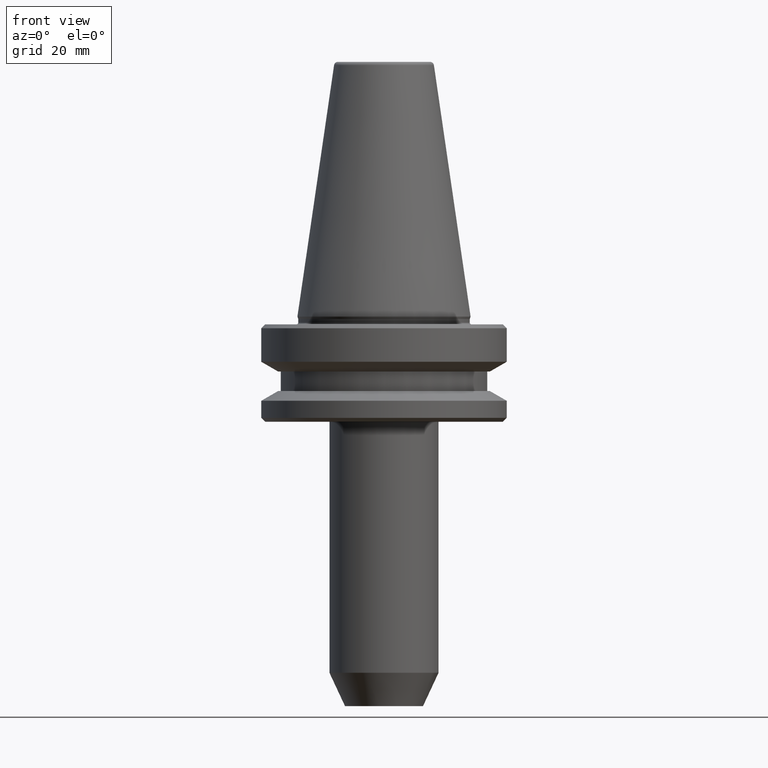
[diagram: clean part render]
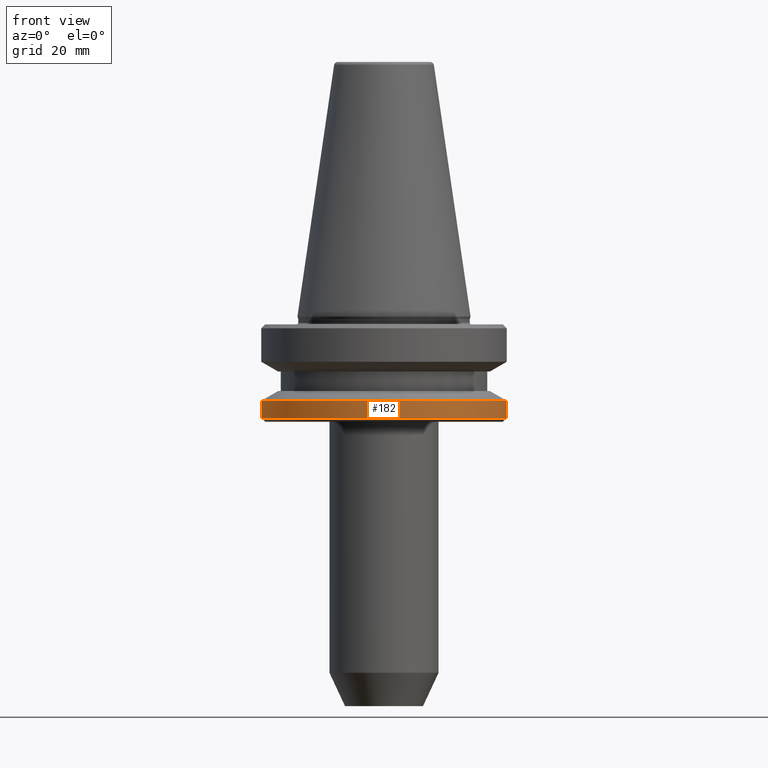
[diagram: same view with one face highlighted and labeled with its STEP entity id]
A machine part, front view. The second image highlights one B-rep face of the part: STEP entity #182.
In plain terms, the highlighted cylindrical surface (partial cylindrical patch) has radius 31.5 mm, axis along (-0, -0, 1).
Its self-contained STEP definition (entity closure, byte-faithful):
#19 = CARTESIAN_POINT ( 'NONE',  ( -31.49999999999986100, 3.857637417314145300E-015, -21.60014200631687900 ) ) ;
#91 = VECTOR ( 'NONE', #327, 1000.000000000000000 ) ;
#96 = CIRCLE ( 'NONE', #393, 31.49999999999986100 ) ;
#158 = CARTESIAN_POINT ( 'NONE',  ( -31.49999999999986100, 3.857637417314145300E-015, 81.16727785008510000 ) ) ;
#172 = CARTESIAN_POINT ( 'NONE',  ( 31.49999999999986100, 0.0000000000000000000, -25.99999999999980100 ) ) ;
#182 = ADVANCED_FACE ( 'NONE', ( #343 ), #397, .T. ) ;
#192 = EDGE_CURVE ( 'NONE', #418, #469, #96, .T. ) ;
#212 = CIRCLE ( 'NONE', #638, 31.49999999999986100 ) ;
#245 = DIRECTION ( 'NONE',  ( -0.0000000000000000000, -0.0000000000000000000, 1.000000000000000000 ) ) ;
#269 = EDGE_LOOP ( 'NONE', ( #519, #283, #430, #409 ) ) ;
#283 = ORIENTED_EDGE ( 'NONE', *, *, #362, .T. ) ;
#301 = EDGE_CURVE ( 'NONE', #445, #469, #551, .T. ) ;
#327 = DIRECTION ( 'NONE',  ( -0.0000000000000000000, -0.0000000000000000000, 1.000000000000000000 ) ) ;
#343 = FACE_OUTER_BOUND ( 'NONE', #269, .T. ) ;
#348 = CARTESIAN_POINT ( 'NONE',  ( 0.0000000000000000000, 0.0000000000000000000, 81.16727785008510000 ) ) ;
#362 = EDGE_CURVE ( 'NONE', #752, #445, #212, .T. ) ;
#393 = AXIS2_PLACEMENT_3D ( 'NONE', #419, #245, #728 ) ;
#397 = CYLINDRICAL_SURFACE ( 'NONE', #416, 31.49999999999986100 ) ;
#399 = CARTESIAN_POINT ( 'NONE',  ( -31.49999999999986100, 3.857637417314145300E-015, -25.99999999999980100 ) ) ;
#409 = ORIENTED_EDGE ( 'NONE', *, *, #192, .F. ) ;
#416 = AXIS2_PLACEMENT_3D ( 'NONE', #348, #550, #630 ) ;
#418 = VERTEX_POINT ( 'NONE', #19 ) ;
#419 = CARTESIAN_POINT ( 'NONE',  ( 0.0000000000000000000, 0.0000000000000000000, -21.60014200631687900 ) ) ;
#430 = ORIENTED_EDGE ( 'NONE', *, *, #301, .T. ) ;
#445 = VERTEX_POINT ( 'NONE', #172 ) ;
#469 = VERTEX_POINT ( 'NONE', #966 ) ;
#519 = ORIENTED_EDGE ( 'NONE', *, *, #942, .F. ) ;
#523 = VECTOR ( 'NONE', #534, 1000.000000000000000 ) ;
#534 = DIRECTION ( 'NONE',  ( -0.0000000000000000000, -0.0000000000000000000, 1.000000000000000000 ) ) ;
#550 = DIRECTION ( 'NONE',  ( -0.0000000000000000000, -0.0000000000000000000, 1.000000000000000000 ) ) ;
#551 = LINE ( 'NONE', #678, #523 ) ;
#630 = DIRECTION ( 'NONE',  ( 1.000000000000000000, 0.0000000000000000000, 0.0000000000000000000 ) ) ;
#638 = AXIS2_PLACEMENT_3D ( 'NONE', #907, #735, #850 ) ;
#678 = CARTESIAN_POINT ( 'NONE',  ( 31.49999999999986100, 0.0000000000000000000, 81.16727785008510000 ) ) ;
#728 = DIRECTION ( 'NONE',  ( 1.000000000000000000, 0.0000000000000000000, 0.0000000000000000000 ) ) ;
#735 = DIRECTION ( 'NONE',  ( -0.0000000000000000000, -0.0000000000000000000, 1.000000000000000000 ) ) ;
#752 = VERTEX_POINT ( 'NONE', #399 ) ;
#850 = DIRECTION ( 'NONE',  ( 1.000000000000000000, 0.0000000000000000000, 0.0000000000000000000 ) ) ;
#895 = LINE ( 'NONE', #158, #91 ) ;
#907 = CARTESIAN_POINT ( 'NONE',  ( 0.0000000000000000000, 0.0000000000000000000, -25.99999999999980100 ) ) ;
#942 = EDGE_CURVE ( 'NONE', #752, #418, #895, .T. ) ;
#966 = CARTESIAN_POINT ( 'NONE',  ( 31.49999999999986100, 0.0000000000000000000, -21.60014200631687900 ) ) ;